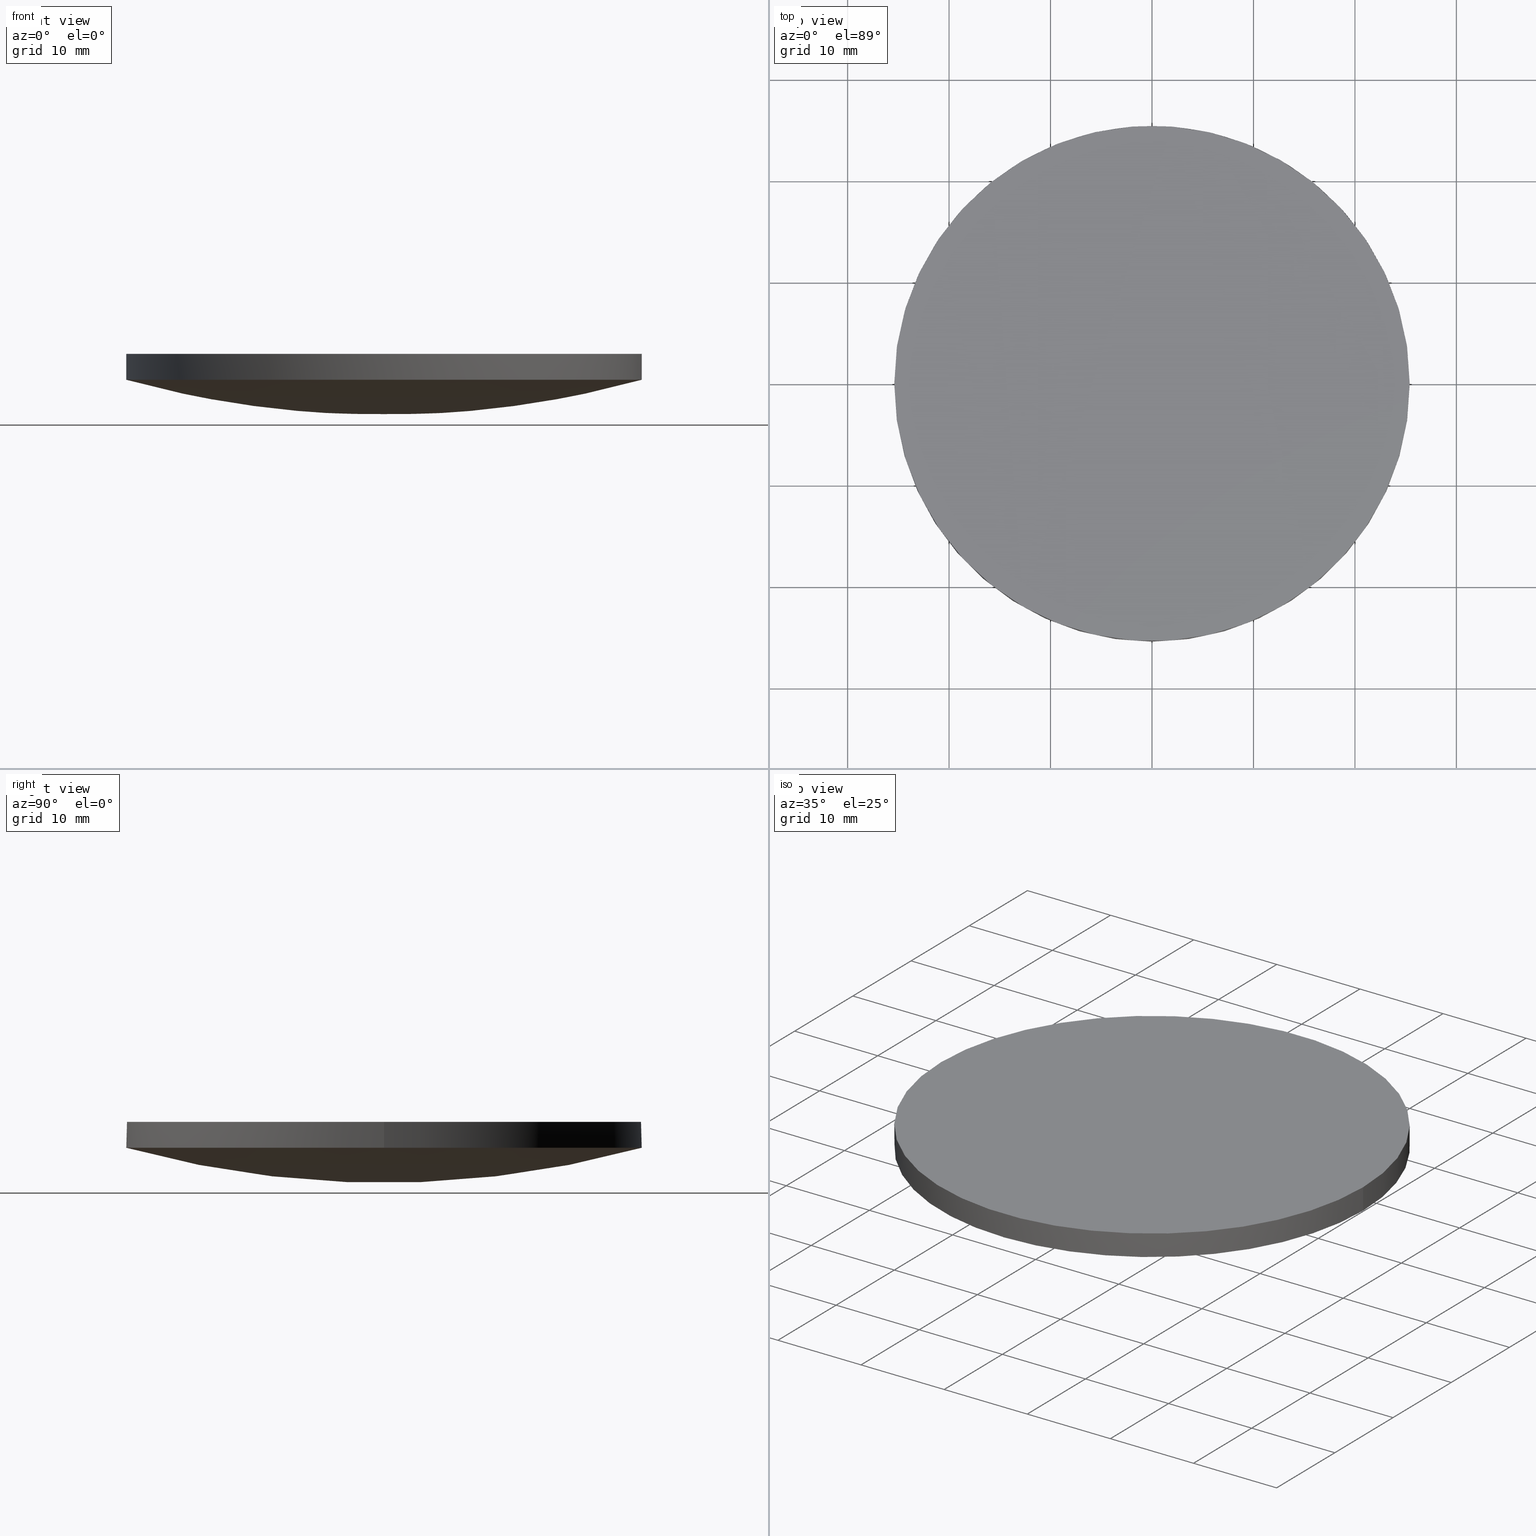
[diagram: canonical four-view strip — front | top / right | iso, engineering-drawing reading convention]
A machine part, canonical four-view strip (front | top / right | iso — engineering-drawing reading convention). The complete STEP part file that produces these views, byte-faithful:
ISO-10303-21;
HEADER;
FILE_DESCRIPTION (( 'STEP AP203' ),
    '1' );
FILE_NAME ('110-1515E UVFS pl-cx 50.8 F200.STEP',
    '2018-12-13T15:10:27',
    ( '' ),
    ( '' ),
    'SwSTEP 2.0',
    'SolidWorks 2017',
    '' );
FILE_SCHEMA (( 'CONFIG_CONTROL_DESIGN' ));
ENDSEC;

DATA;
#1 = CARTESIAN_POINT ( 'NONE',  ( 16.57836865590124400, 25.69722050648949000, 4.661104122631375200 ) ) ;
#2 = DATE_AND_TIME ( #185, #20 ) ;
#3 = CC_DESIGN_APPROVAL ( #14, ( #53 ) ) ;
#4 = CARTESIAN_POINT ( 'NONE',  ( 25.87271340151602000, -8.783042982134931600, 2.328503816308484400 ) ) ;
#5 =( NAMED_UNIT ( * ) PLANE_ANGLE_UNIT ( ) SI_UNIT ( $, .RADIAN. ) );
#6 = CC_DESIGN_PERSON_AND_ORGANIZATION_ASSIGNMENT ( #127, #171, ( #181 ) ) ;
#7 = CIRCLE ( 'NONE', #9, 25.39999999999999900 ) ;
#8 = ORIENTED_EDGE ( 'NONE', *, *, #163, .F. ) ;
#9 = AXIS2_PLACEMENT_3D ( 'NONE', #195, #77, #61 ) ;
#10 = CARTESIAN_POINT ( 'NONE',  ( -25.39999999999999900, 7.995584178184967200E-015, 6.000000000000000000 ) ) ;
#11 = CC_DESIGN_APPROVAL ( #219, ( #139 ) ) ;
#12 = PERSON ( 'UNSPECIFIED', 'UNSPECIFIED', 'UNSPECIFIED', ('UNSPECIFIED'), ('UNSPECIFIED'), ('UNSPECIFIED') ) ;
#13 = LOCAL_TIME ( 17, 10, 27.00000000000000000, #148 ) ;
#14 = APPROVAL ( #41, 'UNSPECIFIED' ) ;
#15 = DIRECTION ( 'NONE',  ( -0.0000000000000000000, -0.0000000000000000000, -1.000000000000000000 ) ) ;
#16 = CALENDAR_DATE ( 2018, 13, 12 ) ;
#17 = VERTEX_POINT ( 'NONE', #144 ) ;
#18 = CARTESIAN_POINT ( 'NONE',  ( 1.734723475976807100E-014, 25.69722050648948700, 3.533411067814825800 ) ) ;
#19 = CARTESIAN_POINT ( 'NONE',  ( 16.57836865590124400, -25.69722050648948300, 4.661104122631386700 ) ) ;
#20 = LOCAL_TIME ( 17, 10, 27.00000000000000000, #91 ) ;
#21 = CARTESIAN_POINT ( 'NONE',  ( 8.327538271341469000, 25.69722050648949000, 3.533411067814825800 ) ) ;
#22 = CARTESIAN_POINT ( 'NONE',  ( 17.43572612724802100, -8.783042982134928100, -0.02167100524764565100 ) ) ;
#23 = AXIS2_PLACEMENT_3D ( 'NONE', #153, #192, #90 ) ;
#24 = SECURITY_CLASSIFICATION_LEVEL ( 'unclassified' ) ;
#25 = LOCAL_TIME ( 17, 10, 27.00000000000000000, #207 ) ;
#26 = APPLICATION_PROTOCOL_DEFINITION ( 'international standard', 'config_control_design', 1994, #39 ) ;
#27 = DATE_AND_TIME ( #104, #25 ) ;
#28 = CC_DESIGN_PERSON_AND_ORGANIZATION_ASSIGNMENT ( #93, #157, ( #139 ) ) ;
#29 = CYLINDRICAL_SURFACE ( 'NONE', #178, 25.39999999999999900 ) ;
#30 = CC_DESIGN_SECURITY_CLASSIFICATION ( #181, ( #53 ) ) ;
#31 = FACE_OUTER_BOUND ( 'NONE', #223, .T. ) ;
#32 = CARTESIAN_POINT ( 'NONE',  ( -25.39999999999999900, 7.995584178184967200E-015, 3.450618463287360000 ) ) ;
#33 = DIRECTION ( 'NONE',  ( 0.0000000000000000000, 0.0000000000000000000, 1.000000000000000000 ) ) ;
#34 =( BOUNDED_SURFACE ( )  B_SPLINE_SURFACE ( 3, 3, ( 
 ( #149, #117, #19, #74 ),
 ( #63, #106, #22, #4 ),
 ( #235, #137, #76, #174 ),
 ( #120, #21, #1, #79 ) ),
 .UNSPECIFIED., .F., .F., .F. ) 
 B_SPLINE_SURFACE_WITH_KNOTS ( ( 4, 4 ),
 ( 4, 4 ),
 ( 0.0000000000000000000, 1.000000000000000000 ),
 ( 0.0000000000000000000, 1.000000000000000000 ),
 .UNSPECIFIED. ) 
 GEOMETRIC_REPRESENTATION_ITEM ( )  RATIONAL_B_SPLINE_SURFACE ( (
 ( 1.000000000000000000, 0.9938590986289715900, 0.9938590986289715900, 1.000000000000000000),
 ( 0.9752588238783401800, 0.9692698556296781600, 0.9692698556296781600, 0.9752588238783401800),
 ( 0.9752588238783401800, 0.9692698556296781600, 0.9692698556296781600, 0.9752588238783401800),
 ( 1.000000000000000000, 0.9938590986289715900, 0.9938590986289715900, 1.000000000000000000) ) ) 
 REPRESENTATION_ITEM ( '' )  SURFACE ( )  );
#35 = CARTESIAN_POINT ( 'NONE',  ( 0.0000000000000000000, 52.02000000000000300, 6.000000000000000000 ) ) ;
#36 = DIRECTION ( 'NONE',  ( 1.000000000000000000, 1.776356839400250500E-015, 0.0000000000000000000 ) ) ;
#37 = APPROVAL ( #89, 'UNSPECIFIED' ) ;
#38 = VECTOR ( 'NONE', #203, 1000.000000000000000 ) ;
#39 = APPLICATION_CONTEXT ( 'configuration controlled 3d designs of mechanical parts and assemblies' ) ;
#40 = CC_DESIGN_DATE_AND_TIME_ASSIGNMENT ( #27, #151, ( #139 ) ) ;
#41 = APPROVAL_STATUS ( 'not_yet_approved' ) ;
#42 = DIRECTION ( 'NONE',  ( 0.0000000000000000000, 0.0000000000000000000, 1.000000000000000000 ) ) ;
#43 = COORDINATED_UNIVERSAL_TIME_OFFSET ( 2, 0, .AHEAD. ) ;
#44 = PRODUCT ( '110-1515E UVFS pl-cx 50.8 F200', '110-1515E UVFS pl-cx 50.8 F200', '', ( #215 ) ) ;
#45 = UNCERTAINTY_MEASURE_WITH_UNIT (LENGTH_MEASURE( 1.000000000000000100E-005 ), #110, 'distance_accuracy_value', 'NONE');
#46 =( GEOMETRIC_REPRESENTATION_CONTEXT ( 3 ) GLOBAL_UNCERTAINTY_ASSIGNED_CONTEXT ( ( #45 ) ) GLOBAL_UNIT_ASSIGNED_CONTEXT ( ( #110, #5, #170 ) ) REPRESENTATION_CONTEXT ( 'NONE', 'WORKASPACE' ) );
#47 = ORIENTED_EDGE ( 'NONE', *, *, #234, .F. ) ;
#48 = MANIFOLD_SOLID_BREP ( 'Imported1', #81 ) ;
#49 = PERSON_AND_ORGANIZATION ( #12, #108 ) ;
#50 = ORIENTED_EDGE ( 'NONE', *, *, #98, .F. ) ;
#51 = VERTEX_POINT ( 'NONE', #200 ) ;
#52 = CARTESIAN_POINT ( 'NONE',  ( 9.992007221626412800E-016, 4.884981308350691100E-015, 3.450618463287360000 ) ) ;
#53 = PRODUCT_DEFINITION_FORMATION_WITH_SPECIFIED_SOURCE ( 'ANY', '', #44, .NOT_KNOWN. ) ;
#54 = FACE_OUTER_BOUND ( 'NONE', #208, .T. ) ;
#55 = ORIENTED_EDGE ( 'NONE', *, *, #66, .F. ) ;
#56 = CARTESIAN_POINT ( 'NONE',  ( -25.87271340151603400, 8.783042982134942300, 2.328503816308475500 ) ) ;
#57 = LOCAL_TIME ( 17, 10, 27.00000000000000000, #43 ) ;
#58 = ORIENTED_EDGE ( 'NONE', *, *, #123, .F. ) ;
#59 = DIRECTION ( 'NONE',  ( 1.000000000000000000, 0.0000000000000000000, 0.0000000000000000000 ) ) ;
#60 = PERSON_AND_ORGANIZATION_ROLE ( 'creator' ) ;
#61 = DIRECTION ( 'NONE',  ( 1.000000000000000000, -8.881784197001252300E-016, 0.0000000000000000000 ) ) ;
#62 = PERSON_AND_ORGANIZATION ( #12, #108 ) ;
#63 = CARTESIAN_POINT ( 'NONE',  ( 3.684655811423986700E-014, -8.783042982134933400, -1.207683191819580300 ) ) ;
#64 = CIRCLE ( 'NONE', #197, 25.39999999999999900 ) ;
#65 = CC_DESIGN_APPROVAL ( #37, ( #181 ) ) ;
#66 = EDGE_CURVE ( 'NONE', #132, #199, #175, .T. ) ;
#67 = PERSON_AND_ORGANIZATION ( #12, #108 ) ;
#68 = CALENDAR_DATE ( 2018, 13, 12 ) ;
#69 = ADVANCED_FACE ( 'NONE', ( #221 ), #29, .T. ) ;
#70 = PLANE ( 'NONE',  #222 ) ;
#71 = CARTESIAN_POINT ( 'NONE',  ( -8.327538271341444100, -25.69722050648948300, 3.533411067814838300 ) ) ;
#72 = ORIENTED_EDGE ( 'NONE', *, *, #87, .T. ) ;
#73 = CARTESIAN_POINT ( 'NONE',  ( -17.43572612724801700, 8.783042982134940500, -0.02167100524766300100 ) ) ;
#74 = CARTESIAN_POINT ( 'NONE',  ( 24.60048854681736000, -25.69722050648947900, 6.895715076785210200 ) ) ;
#75 = PERSON_AND_ORGANIZATION_ROLE ( 'design_supplier' ) ;
#76 = CARTESIAN_POINT ( 'NONE',  ( 17.43572612724802400, 8.783042982134938700, -0.02167100524765779700 ) ) ;
#77 = DIRECTION ( 'NONE',  ( -0.0000000000000000000, -0.0000000000000000000, -1.000000000000000000 ) ) ;
#78 = APPROVAL_DATE_TIME ( #2, #219 ) ;
#79 = CARTESIAN_POINT ( 'NONE',  ( 24.60048854681736000, 25.69722050648948700, 6.895715076785196000 ) ) ;
#80 = CC_DESIGN_PERSON_AND_ORGANIZATION_ASSIGNMENT ( #62, #217, ( #44 ) ) ;
#81 = CLOSED_SHELL ( 'NONE', ( #205, #69, #204, #131, #129 ) ) ;
#82 = ORIENTED_EDGE ( 'NONE', *, *, #216, .T. ) ;
#83 = APPROVAL_PERSON_ORGANIZATION ( #49, #219, #190 ) ;
#84 = EDGE_LOOP ( 'NONE', ( #179, #135, #82 ) ) ;
#85 = DIRECTION ( 'NONE',  ( 1.000000000000000000, 9.414397848674539600E-032, 3.084613711104210100E-016 ) ) ;
#86 = EDGE_LOOP ( 'NONE', ( #167, #72, #173, #55, #143 ) ) ;
#87 = EDGE_CURVE ( 'NONE', #51, #109, #218, .T. ) ;
#88 = DIRECTION ( 'NONE',  ( 1.000000000000000000, 0.0000000000000000000, -0.0000000000000000000 ) ) ;
#89 = APPROVAL_STATUS ( 'not_yet_approved' ) ;
#90 = DIRECTION ( 'NONE',  ( 1.000000000000000000, 0.0000000000000000000, 0.0000000000000000000 ) ) ;
#91 = COORDINATED_UNIVERSAL_TIME_OFFSET ( 2, 0, .AHEAD. ) ;
#92 = VERTEX_POINT ( 'NONE', #130 ) ;
#93 = PERSON_AND_ORGANIZATION ( #12, #108 ) ;
#94 = ORIENTED_EDGE ( 'NONE', *, *, #141, .T. ) ;
#95 = AXIS2_PLACEMENT_3D ( 'NONE', #150, #102, #232 ) ;
#96 = DIRECTION ( 'NONE',  ( 0.0000000000000000000, 0.0000000000000000000, 1.000000000000000000 ) ) ;
#97 = CIRCLE ( 'NONE', #201, 25.39999999999999900 ) ;
#98 = EDGE_CURVE ( 'NONE', #92, #51, #231, .T. ) ;
#99 = DIRECTION ( 'NONE',  ( 1.000000000000000000, 0.0000000000000000000, 0.0000000000000000000 ) ) ;
#100 = CARTESIAN_POINT ( 'NONE',  ( 9.992007221626412800E-016, 4.884981308350691100E-015, 6.000000000000000000 ) ) ;
#101 = APPROVAL_PERSON_ORGANIZATION ( #198, #14, #154 ) ;
#102 = DIRECTION ( 'NONE',  ( 0.0000000000000000000, 0.0000000000000000000, 1.000000000000000000 ) ) ;
#103 = CARTESIAN_POINT ( 'NONE',  ( 9.992007221626412800E-016, 4.884981308350691100E-015, 3.450618463287360000 ) ) ;
#104 = CALENDAR_DATE ( 2018, 13, 12 ) ;
#105 = AXIS2_PLACEMENT_3D ( 'NONE', #146, #85, #212 ) ;
#106 = CARTESIAN_POINT ( 'NONE',  ( 8.758200497707113300, -8.783042982134929800, -1.207683191819577800 ) ) ;
#107 = DIRECTION ( 'NONE',  ( 1.000000000000000000, 0.0000000000000000000, 0.0000000000000000000 ) ) ;
#108 = ORGANIZATION ( 'UNSPECIFIED', 'UNSPECIFIED', '' ) ;
#109 = VERTEX_POINT ( 'NONE', #10 ) ;
#110 =( LENGTH_UNIT ( ) NAMED_UNIT ( * ) SI_UNIT ( .MILLI., .METRE. ) );
#111 = CC_DESIGN_PERSON_AND_ORGANIZATION_ASSIGNMENT ( #172, #60, ( #53 ) ) ;
#112 = CIRCLE ( 'NONE', #126, 25.39999999999999900 ) ;
#113 = CIRCLE ( 'NONE', #105, 95.20999999999999400 ) ;
#114 = CARTESIAN_POINT ( 'NONE',  ( -8.327538271341438800, 25.69722050648949000, 3.533411067814824900 ) ) ;
#115 = CARTESIAN_POINT ( 'NONE',  ( 9.992007221626412800E-016, 4.884981308350691100E-015, 3.450618463287360000 ) ) ;
#116 = CARTESIAN_POINT ( 'NONE',  ( -16.57836865590123300, 25.69722050648949400, 4.661104122631369900 ) ) ;
#117 = CARTESIAN_POINT ( 'NONE',  ( 8.327538271341470700, -25.69722050648948300, 3.533411067814840500 ) ) ;
#118 = VECTOR ( 'NONE', #96, 1000.000000000000000 ) ;
#119 = DIRECTION ( 'NONE',  ( -0.0000000000000000000, -0.0000000000000000000, -1.000000000000000000 ) ) ;
#120 = CARTESIAN_POINT ( 'NONE',  ( 3.538411367834928100E-014, 25.69722050648948700, 3.533411067814823200 ) ) ;
#121 = APPLICATION_PROTOCOL_DEFINITION ( 'international standard', 'config_control_design', 1994, #155 ) ;
#122 = APPROVAL_PERSON_ORGANIZATION ( #162, #37, #214 ) ;
#123 = EDGE_CURVE ( 'NONE', #109, #199, #64, .T. ) ;
#124 = PRODUCT_DEFINITION_SHAPE ( 'NONE', 'NONE',  #139 ) ;
#125 = APPROVAL_STATUS ( 'not_yet_approved' ) ;
#126 = AXIS2_PLACEMENT_3D ( 'NONE', #115, #168, #36 ) ;
#127 = PERSON_AND_ORGANIZATION ( #12, #108 ) ;
#128 = ORIENTED_EDGE ( 'NONE', *, *, #87, .F. ) ;
#129 = ADVANCED_FACE ( 'NONE', ( #31 ), #70, .T. ) ;
#130 = CARTESIAN_POINT ( 'NONE',  ( 3.540965199865962800E-014, -25.39999999999998100, 3.450618463287364900 ) ) ;
#131 = ADVANCED_FACE ( 'NONE', ( #145 ), #213, .T. ) ;
#132 = VERTEX_POINT ( 'NONE', #134 ) ;
#133 = CARTESIAN_POINT ( 'NONE',  ( 1.387778780781445700E-014, -8.783042982134928100, -1.207683191819579600 ) ) ;
#134 = CARTESIAN_POINT ( 'NONE',  ( 25.39999999999999900, 4.884981308350691100E-015, 3.450618463287360000 ) ) ;
#135 = ORIENTED_EDGE ( 'NONE', *, *, #98, .T. ) ;
#136 = CARTESIAN_POINT ( 'NONE',  ( 0.0000000000000000000, 0.0000000000000000000, 0.0000000000000000000 ) ) ;
#137 = CARTESIAN_POINT ( 'NONE',  ( 8.758200497707115100, 8.783042982134936900, -1.207683191819590700 ) ) ;
#138 = ORIENTED_EDGE ( 'NONE', *, *, #189, .T. ) ;
#139 = PRODUCT_DEFINITION ( 'UNKNOWN', '', #53, #140 ) ;
#140 = DESIGN_CONTEXT ( 'detailed design', #155, 'design' ) ;
#141 = EDGE_CURVE ( 'NONE', #92, #17, #113, .T. ) ;
#142 = APPROVAL_DATE_TIME ( #196, #37 ) ;
#143 = ORIENTED_EDGE ( 'NONE', *, *, #189, .F. ) ;
#144 = CARTESIAN_POINT ( 'NONE',  ( 3.540965199865962800E-014, 25.39999999999999100, 3.450618463287351100 ) ) ;
#145 = FACE_OUTER_BOUND ( 'NONE', #187, .T. ) ;
#146 = CARTESIAN_POINT ( 'NONE',  ( 7.105427357601000300E-015, 7.105427357601000300E-015, 95.20999999999999400 ) ) ;
#147 = CARTESIAN_POINT ( 'NONE',  ( -17.43572612724802100, -8.783042982134926300, -0.02167100524765129200 ) ) ;
#148 = COORDINATED_UNIVERSAL_TIME_OFFSET ( 2, 0, .AHEAD. ) ;
#149 = CARTESIAN_POINT ( 'NONE',  ( 3.538411367834928700E-014, -25.69722050648947900, 3.533411067814837400 ) ) ;
#150 = CARTESIAN_POINT ( 'NONE',  ( 9.992007221626412800E-016, 4.884981308350691100E-015, 3.450618463287360000 ) ) ;
#151 = DATE_TIME_ROLE ( 'creation_date' ) ;
#152 = SHAPE_DEFINITION_REPRESENTATION ( #124, #169 ) ;
#153 = CARTESIAN_POINT ( 'NONE',  ( 9.992007221626412800E-016, 4.884981308350691100E-015, 6.000000000000000000 ) ) ;
#154 = APPROVAL_ROLE ( '' ) ;
#155 = APPLICATION_CONTEXT ( 'configuration controlled 3d designs of mechanical parts and assemblies' ) ;
#156 = CIRCLE ( 'NONE', #23, 25.39999999999999900 ) ;
#157 = PERSON_AND_ORGANIZATION_ROLE ( 'creator' ) ;
#158 = COORDINATED_UNIVERSAL_TIME_OFFSET ( 2, 0, .AHEAD. ) ;
#159 = CALENDAR_DATE ( 2018, 13, 12 ) ;
#160 = ORIENTED_EDGE ( 'NONE', *, *, #163, .T. ) ;
#161 = AXIS2_PLACEMENT_3D ( 'NONE', #136, #42, #107 ) ;
#162 = PERSON_AND_ORGANIZATION ( #12, #108 ) ;
#163 = EDGE_CURVE ( 'NONE', #132, #92, #97, .T. ) ;
#164 = DIRECTION ( 'NONE',  ( -0.0000000000000000000, -0.0000000000000000000, -1.000000000000000000 ) ) ;
#165 = CARTESIAN_POINT ( 'NONE',  ( -25.87271340151603700, -8.783042982134928100, 2.328503816308487900 ) ) ;
#166 = CARTESIAN_POINT ( 'NONE',  ( 1.387778780781445700E-014, -25.69722050648947900, 3.533411067814838300 ) ) ;
#167 = ORIENTED_EDGE ( 'NONE', *, *, #216, .F. ) ;
#168 = DIRECTION ( 'NONE',  ( -0.0000000000000000000, -0.0000000000000000000, -1.000000000000000000 ) ) ;
#169 = ADVANCED_BREP_SHAPE_REPRESENTATION ( '110-1515E UVFS pl-cx 50.8 F200', ( #48, #161 ), #46 ) ;
#170 =( NAMED_UNIT ( * ) SI_UNIT ( $, .STERADIAN. ) SOLID_ANGLE_UNIT ( ) );
#171 = PERSON_AND_ORGANIZATION_ROLE ( 'classification_officer' ) ;
#172 = PERSON_AND_ORGANIZATION ( #12, #108 ) ;
#173 = ORIENTED_EDGE ( 'NONE', *, *, #123, .T. ) ;
#174 = CARTESIAN_POINT ( 'NONE',  ( 25.87271340151602300, 8.783042982134940500, 2.328503816308471900 ) ) ;
#175 = LINE ( 'NONE', #180, #38 ) ;
#176 = DATE_AND_TIME ( #68, #13 ) ;
#177 = AXIS2_PLACEMENT_3D ( 'NONE', #103, #15, #184 ) ;
#178 = AXIS2_PLACEMENT_3D ( 'NONE', #52, #33, #182 ) ;
#179 = ORIENTED_EDGE ( 'NONE', *, *, #141, .F. ) ;
#180 = CARTESIAN_POINT ( 'NONE',  ( 25.39999999999999900, 4.884981308350691100E-015, 3.450618463287360000 ) ) ;
#181 = SECURITY_CLASSIFICATION ( '', '', #24 ) ;
#182 = DIRECTION ( 'NONE',  ( 1.000000000000000000, 0.0000000000000000000, 0.0000000000000000000 ) ) ;
#183 = ORIENTED_EDGE ( 'NONE', *, *, #66, .T. ) ;
#184 = DIRECTION ( 'NONE',  ( 1.000000000000000000, 0.0000000000000000000, 0.0000000000000000000 ) ) ;
#185 = CALENDAR_DATE ( 2018, 13, 12 ) ;
#186 = CARTESIAN_POINT ( 'NONE',  ( -16.57836865590123700, -25.69722050648947900, 4.661104122631381400 ) ) ;
#187 = EDGE_LOOP ( 'NONE', ( #128, #50, #8, #183, #226 ) ) ;
#188 = CARTESIAN_POINT ( 'NONE',  ( 25.39999999999999900, 4.884981308350691100E-015, 6.000000000000000000 ) ) ;
#189 = EDGE_CURVE ( 'NONE', #17, #132, #112, .T. ) ;
#190 = APPROVAL_ROLE ( '' ) ;
#191 = FACE_OUTER_BOUND ( 'NONE', #84, .T. ) ;
#192 = DIRECTION ( 'NONE',  ( -0.0000000000000000000, -0.0000000000000000000, -1.000000000000000000 ) ) ;
#193 = CC_DESIGN_DATE_AND_TIME_ASSIGNMENT ( #220, #194, ( #181 ) ) ;
#194 = DATE_TIME_ROLE ( 'classification_date' ) ;
#195 = CARTESIAN_POINT ( 'NONE',  ( 9.992007221626412800E-016, 4.884981308350691100E-015, 3.450618463287360000 ) ) ;
#196 = DATE_AND_TIME ( #159, #202 ) ;
#197 = AXIS2_PLACEMENT_3D ( 'NONE', #100, #164, #59 ) ;
#198 = PERSON_AND_ORGANIZATION ( #12, #108 ) ;
#199 = VERTEX_POINT ( 'NONE', #188 ) ;
#200 = CARTESIAN_POINT ( 'NONE',  ( -25.39999999999999900, 7.995584178184967200E-015, 3.450618463287360000 ) ) ;
#201 = AXIS2_PLACEMENT_3D ( 'NONE', #206, #119, #99 ) ;
#202 = LOCAL_TIME ( 17, 10, 27.00000000000000000, #158 ) ;
#203 = DIRECTION ( 'NONE',  ( 0.0000000000000000000, 0.0000000000000000000, 1.000000000000000000 ) ) ;
#204 = ADVANCED_FACE ( 'NONE', ( #191 ), #210, .T. ) ;
#205 = ADVANCED_FACE ( 'NONE', ( #54 ), #34, .T. ) ;
#206 = CARTESIAN_POINT ( 'NONE',  ( 9.992007221626412800E-016, 4.884981308350691100E-015, 3.450618463287360000 ) ) ;
#207 = COORDINATED_UNIVERSAL_TIME_OFFSET ( 2, 0, .AHEAD. ) ;
#208 = EDGE_LOOP ( 'NONE', ( #160, #94, #138 ) ) ;
#209 = CARTESIAN_POINT ( 'NONE',  ( 2.081668171172168500E-014, 8.783042982134942300, -1.207683191819589800 ) ) ;
#210 =( BOUNDED_SURFACE ( )  B_SPLINE_SURFACE ( 3, 3, ( 
 ( #233, #186, #71, #166 ),
 ( #165, #147, #229, #133 ),
 ( #56, #73, #227, #209 ),
 ( #211, #116, #114, #18 ) ),
 .UNSPECIFIED., .F., .F., .F. ) 
 B_SPLINE_SURFACE_WITH_KNOTS ( ( 4, 4 ),
 ( 4, 4 ),
 ( 0.0000000000000000000, 1.000000000000000000 ),
 ( 0.0000000000000000000, 1.000000000000000000 ),
 .UNSPECIFIED. ) 
 GEOMETRIC_REPRESENTATION_ITEM ( )  RATIONAL_B_SPLINE_SURFACE ( (
 ( 1.000000000000000000, 0.9938590986289715900, 0.9938590986289715900, 1.000000000000000000),
 ( 0.9752588238783401800, 0.9692698556296781600, 0.9692698556296781600, 0.9752588238783401800),
 ( 0.9752588238783401800, 0.9692698556296781600, 0.9692698556296781600, 0.9752588238783401800),
 ( 1.000000000000000000, 0.9938590986289715900, 0.9938590986289715900, 1.000000000000000000) ) ) 
 REPRESENTATION_ITEM ( '' )  SURFACE ( )  );
#211 = CARTESIAN_POINT ( 'NONE',  ( -24.60048854681737000, 25.69722050648949000, 6.895715076785199600 ) ) ;
#212 = DIRECTION ( 'NONE',  ( 0.0000000000000000000, -1.000000000000000000, 2.915195422290611700E-016 ) ) ;
#213 = CYLINDRICAL_SURFACE ( 'NONE', #95, 25.39999999999999900 ) ;
#214 = APPROVAL_ROLE ( '' ) ;
#215 = MECHANICAL_CONTEXT ( 'NONE', #39, 'mechanical' ) ;
#216 = EDGE_CURVE ( 'NONE', #51, #17, #7, .T. ) ;
#217 = PERSON_AND_ORGANIZATION_ROLE ( 'design_owner' ) ;
#218 = LINE ( 'NONE', #32, #118 ) ;
#219 = APPROVAL ( #125, 'UNSPECIFIED' ) ;
#220 = DATE_AND_TIME ( #16, #57 ) ;
#221 = FACE_OUTER_BOUND ( 'NONE', #86, .T. ) ;
#222 = AXIS2_PLACEMENT_3D ( 'NONE', #35, #228, #88 ) ;
#223 = EDGE_LOOP ( 'NONE', ( #47, #58 ) ) ;
#224 = CC_DESIGN_PERSON_AND_ORGANIZATION_ASSIGNMENT ( #67, #75, ( #53 ) ) ;
#225 = APPROVAL_DATE_TIME ( #176, #14 ) ;
#226 = ORIENTED_EDGE ( 'NONE', *, *, #234, .T. ) ;
#227 = CARTESIAN_POINT ( 'NONE',  ( -8.758200497707079500, 8.783042982134940500, -1.207683191819591200 ) ) ;
#228 = DIRECTION ( 'NONE',  ( 0.0000000000000000000, 0.0000000000000000000, 1.000000000000000000 ) ) ;
#229 = CARTESIAN_POINT ( 'NONE',  ( -8.758200497707084900, -8.783042982134926300, -1.207683191819580100 ) ) ;
#230 = PRODUCT_RELATED_PRODUCT_CATEGORY ( 'detail', '', ( #44 ) ) ;
#231 = CIRCLE ( 'NONE', #177, 25.39999999999999900 ) ;
#232 = DIRECTION ( 'NONE',  ( 1.000000000000000000, 0.0000000000000000000, 0.0000000000000000000 ) ) ;
#233 = CARTESIAN_POINT ( 'NONE',  ( -24.60048854681737800, -25.69722050648947600, 6.895715076785213800 ) ) ;
#234 = EDGE_CURVE ( 'NONE', #199, #109, #156, .T. ) ;
#235 = CARTESIAN_POINT ( 'NONE',  ( 3.684655811423986700E-014, 8.783042982134938700, -1.207683191819593600 ) ) ;
ENDSEC;
END-ISO-10303-21;
